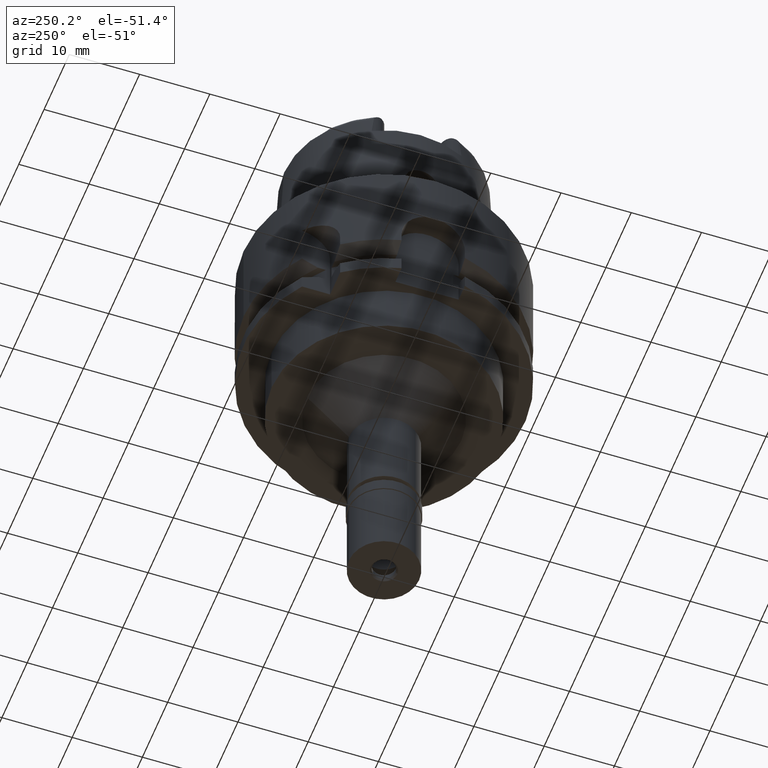
[diagram: clean part render]
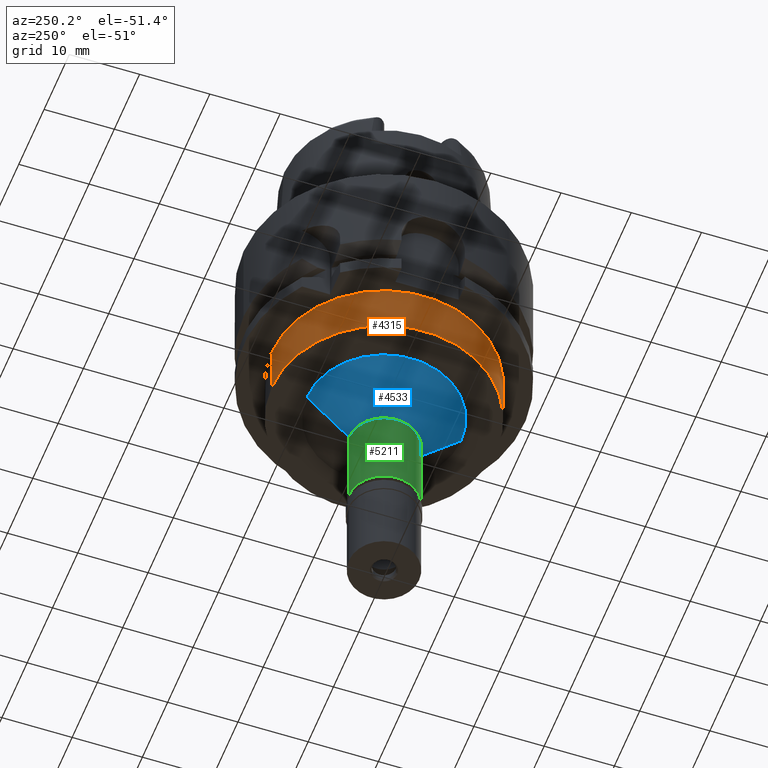
[diagram: same view with three faces highlighted in distinct colors, each labeled with its STEP entity id]
A machine part, auxiliary view with three faces highlighted in distinct colors.
Their STEP definitions:

[orange] entity #4315 — the highlighted cylindrical surface (partial cylindrical patch) has radius 16 mm, axis along (0, 0, 1).
#58 = DIRECTION ( 'NONE',  ( 0.0000000000000000000, 1.000000000000000000, 0.0000000000000000000 ) ) ;
#234 = ORIENTED_EDGE ( 'NONE', *, *, #4853, .T. ) ;
#532 = CARTESIAN_POINT ( 'NONE',  ( 0.0000000000000000000, -16.00000000000000000, -27.50000000000000000 ) ) ;
#570 = CIRCLE ( 'NONE', #1435, 16.00000000000000000 ) ;
#637 = DIRECTION ( 'NONE',  ( 0.0000000000000000000, 0.0000000000000000000, -1.000000000000000000 ) ) ;
#645 = DIRECTION ( 'NONE',  ( 0.0000000000000000000, -1.000000000000000000, 0.0000000000000000000 ) ) ;
#885 = VERTEX_POINT ( 'NONE', #2861 ) ;
#961 = DIRECTION ( 'NONE',  ( 0.0000000000000000000, 1.000000000000000000, 0.0000000000000000000 ) ) ;
#1014 = DIRECTION ( 'NONE',  ( 0.0000000000000000000, 0.0000000000000000000, -1.000000000000000000 ) ) ;
#1143 = ORIENTED_EDGE ( 'NONE', *, *, #2991, .F. ) ;
#1367 = CARTESIAN_POINT ( 'NONE',  ( 0.0000000000000000000, 16.00000000000000000, -20.00000000000000000 ) ) ;
#1435 = AXIS2_PLACEMENT_3D ( 'NONE', #5093, #4225, #961 ) ;
#1709 = EDGE_CURVE ( 'NONE', #885, #2569, #1809, .T. ) ;
#1809 = CIRCLE ( 'NONE', #3309, 16.00000000000000000 ) ;
#1814 = CARTESIAN_POINT ( 'NONE',  ( 0.0000000000000000000, -16.00000000000000000, -20.00000000000000000 ) ) ;
#2028 = AXIS2_PLACEMENT_3D ( 'NONE', #2495, #4124, #58 ) ;
#2495 = CARTESIAN_POINT ( 'NONE',  ( 0.0000000000000000000, 0.0000000000000000000, -60.11500000000000199 ) ) ;
#2517 = ORIENTED_EDGE ( 'NONE', *, *, #1709, .T. ) ;
#2519 = FACE_OUTER_BOUND ( 'NONE', #3129, .T. ) ;
#2569 = VERTEX_POINT ( 'NONE', #1367 ) ;
#2861 = CARTESIAN_POINT ( 'NONE',  ( 0.0000000000000000000, -16.00000000000000000, -20.00000000000000000 ) ) ;
#2991 = EDGE_CURVE ( 'NONE', #885, #3438, #3354, .T. ) ;
#3129 = EDGE_LOOP ( 'NONE', ( #234, #1143, #2517, #4517 ) ) ;
#3270 = VERTEX_POINT ( 'NONE', #4969 ) ;
#3309 = AXIS2_PLACEMENT_3D ( 'NONE', #4799, #3495, #645 ) ;
#3344 = LINE ( 'NONE', #4674, #3699 ) ;
#3354 = LINE ( 'NONE', #1814, #5113 ) ;
#3438 = VERTEX_POINT ( 'NONE', #532 ) ;
#3495 = DIRECTION ( 'NONE',  ( 0.0000000000000000000, 0.0000000000000000000, -1.000000000000000000 ) ) ;
#3672 = EDGE_CURVE ( 'NONE', #2569, #3270, #3344, .T. ) ;
#3699 = VECTOR ( 'NONE', #1014, 1000.000000000000000 ) ;
#4124 = DIRECTION ( 'NONE',  ( 0.0000000000000000000, 0.0000000000000000000, 1.000000000000000000 ) ) ;
#4151 = CYLINDRICAL_SURFACE ( 'NONE', #2028, 16.00000000000000000 ) ;
#4225 = DIRECTION ( 'NONE',  ( 0.0000000000000000000, 0.0000000000000000000, 1.000000000000000000 ) ) ;
#4315 = ADVANCED_FACE ( 'NONE', ( #2519 ), #4151, .T. ) ;
#4517 = ORIENTED_EDGE ( 'NONE', *, *, #3672, .T. ) ;
#4674 = CARTESIAN_POINT ( 'NONE',  ( 0.0000000000000000000, 16.00000000000000000, -20.00000000000000000 ) ) ;
#4799 = CARTESIAN_POINT ( 'NONE',  ( 0.0000000000000000000, 0.0000000000000000000, -20.00000000000000000 ) ) ;
#4853 = EDGE_CURVE ( 'NONE', #3270, #3438, #570, .T. ) ;
#4969 = CARTESIAN_POINT ( 'NONE',  ( 0.0000000000000000000, 16.00000000000000000, -27.50000000000000000 ) ) ;
#5093 = CARTESIAN_POINT ( 'NONE',  ( 0.0000000000000000000, 0.0000000000000000000, -27.50000000000000000 ) ) ;
#5113 = VECTOR ( 'NONE', #637, 1000.000000000000000 ) ;

[blue] entity #4533 — the highlighted conical surface has half-angle 45 deg.
#109 = ORIENTED_EDGE ( 'NONE', *, *, #748, .F. ) ;
#254 = VERTEX_POINT ( 'NONE', #3761 ) ;
#477 = CIRCLE ( 'NONE', #995, 5.000000000000000000 ) ;
#478 = VERTEX_POINT ( 'NONE', #2290 ) ;
#516 = VERTEX_POINT ( 'NONE', #3040 ) ;
#545 = DIRECTION ( 'NONE',  ( 0.0000000000000000000, 0.7071067811865474617, -0.7071067811865474617 ) ) ;
#580 = CIRCLE ( 'NONE', #2549, 11.00000000000000000 ) ;
#724 = EDGE_CURVE ( 'NONE', #478, #516, #580, .T. ) ;
#745 = DIRECTION ( 'NONE',  ( 0.0000000000000000000, 0.0000000000000000000, -1.000000000000000000 ) ) ;
#748 = EDGE_CURVE ( 'NONE', #478, #3190, #4497, .T. ) ;
#752 = EDGE_LOOP ( 'NONE', ( #1059, #109, #2618, #4890 ) ) ;
#995 = AXIS2_PLACEMENT_3D ( 'NONE', #1526, #745, #5210 ) ;
#1059 = ORIENTED_EDGE ( 'NONE', *, *, #4471, .F. ) ;
#1526 = CARTESIAN_POINT ( 'NONE',  ( 0.0000000000000000000, 0.0000000000000000000, -33.50000000000000000 ) ) ;
#1716 = CARTESIAN_POINT ( 'NONE',  ( 0.0000000000000000000, -5.000000000000000000, -33.50000000000000000 ) ) ;
#2090 = DIRECTION ( 'NONE',  ( 0.0000000000000000000, 0.0000000000000000000, 1.000000000000000000 ) ) ;
#2290 = CARTESIAN_POINT ( 'NONE',  ( 0.0000000000000000000, -11.00000000000000000, -27.50000000000000000 ) ) ;
#2549 = AXIS2_PLACEMENT_3D ( 'NONE', #4187, #2578, #4925 ) ;
#2578 = DIRECTION ( 'NONE',  ( 0.0000000000000000000, 0.0000000000000000000, -1.000000000000000000 ) ) ;
#2618 = ORIENTED_EDGE ( 'NONE', *, *, #724, .T. ) ;
#2771 = DIRECTION ( 'NONE',  ( 0.0000000000000000000, -0.7071067811865474617, -0.7071067811865474617 ) ) ;
#2821 = CARTESIAN_POINT ( 'NONE',  ( 0.0000000000000000000, 0.0000000000000000000, -30.50000000000000000 ) ) ;
#2841 = FACE_OUTER_BOUND ( 'NONE', #752, .T. ) ;
#2962 = CARTESIAN_POINT ( 'NONE',  ( 0.0000000000000000000, -11.00000000000000000, -27.50000000000000000 ) ) ;
#3040 = CARTESIAN_POINT ( 'NONE',  ( 0.0000000000000000000, 11.00000000000000000, -27.50000000000000000 ) ) ;
#3046 = VECTOR ( 'NONE', #545, 1000.000000000000114 ) ;
#3176 = EDGE_CURVE ( 'NONE', #516, #254, #3978, .T. ) ;
#3190 = VERTEX_POINT ( 'NONE', #1716 ) ;
#3195 = CONICAL_SURFACE ( 'NONE', #4579, 8.000000000000000000, 0.7853981633972997312 ) ;
#3570 = CARTESIAN_POINT ( 'NONE',  ( 0.0000000000000000000, 11.00000000000000000, -27.50000000000000000 ) ) ;
#3717 = DIRECTION ( 'NONE',  ( 0.0000000000000000000, 1.000000000000000000, 0.0000000000000000000 ) ) ;
#3761 = CARTESIAN_POINT ( 'NONE',  ( 0.0000000000000000000, 5.000000000000000000, -33.50000000000000000 ) ) ;
#3978 = LINE ( 'NONE', #3570, #4270 ) ;
#4187 = CARTESIAN_POINT ( 'NONE',  ( 0.0000000000000000000, 0.0000000000000000000, -27.50000000000000000 ) ) ;
#4270 = VECTOR ( 'NONE', #2771, 1000.000000000000114 ) ;
#4471 = EDGE_CURVE ( 'NONE', #3190, #254, #477, .T. ) ;
#4497 = LINE ( 'NONE', #2962, #3046 ) ;
#4533 = ADVANCED_FACE ( 'NONE', ( #2841 ), #3195, .T. ) ;
#4579 = AXIS2_PLACEMENT_3D ( 'NONE', #2821, #2090, #3717 ) ;
#4890 = ORIENTED_EDGE ( 'NONE', *, *, #3176, .T. ) ;
#4925 = DIRECTION ( 'NONE',  ( 0.0000000000000000000, -1.000000000000000000, 0.0000000000000000000 ) ) ;
#5210 = DIRECTION ( 'NONE',  ( 0.0000000000000000000, -1.000000000000000000, 0.0000000000000000000 ) ) ;

[green] entity #5211 — the highlighted cylindrical surface (partial cylindrical patch) has radius 5 mm, axis along (0, 0, 1).
#189 = DIRECTION ( 'NONE',  ( 0.0000000000000000000, 0.0000000000000000000, 1.000000000000000000 ) ) ;
#254 = VERTEX_POINT ( 'NONE', #3761 ) ;
#426 = AXIS2_PLACEMENT_3D ( 'NONE', #4994, #189, #940 ) ;
#477 = CIRCLE ( 'NONE', #995, 5.000000000000000000 ) ;
#524 = DIRECTION ( 'NONE',  ( 0.0000000000000000000, 1.000000000000000000, 0.0000000000000000000 ) ) ;
#745 = DIRECTION ( 'NONE',  ( 0.0000000000000000000, 0.0000000000000000000, -1.000000000000000000 ) ) ;
#927 = DIRECTION ( 'NONE',  ( 0.0000000000000000000, 0.0000000000000000000, 1.000000000000000000 ) ) ;
#940 = DIRECTION ( 'NONE',  ( 0.0000000000000000000, 1.000000000000000000, 0.0000000000000000000 ) ) ;
#979 = CYLINDRICAL_SURFACE ( 'NONE', #1597, 5.000000000000000000 ) ;
#995 = AXIS2_PLACEMENT_3D ( 'NONE', #1526, #745, #5210 ) ;
#1122 = VECTOR ( 'NONE', #2523, 1000.000000000000000 ) ;
#1220 = ORIENTED_EDGE ( 'NONE', *, *, #3410, .T. ) ;
#1334 = CARTESIAN_POINT ( 'NONE',  ( 0.0000000000000000000, 0.0000000000000000000, -60.11500000000000199 ) ) ;
#1474 = DIRECTION ( 'NONE',  ( 0.0000000000000000000, 0.0000000000000000000, -1.000000000000000000 ) ) ;
#1526 = CARTESIAN_POINT ( 'NONE',  ( 0.0000000000000000000, 0.0000000000000000000, -33.50000000000000000 ) ) ;
#1552 = EDGE_CURVE ( 'NONE', #3190, #2514, #1819, .T. ) ;
#1597 = AXIS2_PLACEMENT_3D ( 'NONE', #1334, #927, #524 ) ;
#1716 = CARTESIAN_POINT ( 'NONE',  ( 0.0000000000000000000, -5.000000000000000000, -33.50000000000000000 ) ) ;
#1805 = CARTESIAN_POINT ( 'NONE',  ( 0.0000000000000000000, 5.000000000000000000, -33.50000000000000000 ) ) ;
#1807 = VECTOR ( 'NONE', #1474, 1000.000000000000000 ) ;
#1819 = LINE ( 'NONE', #3360, #1122 ) ;
#2073 = ORIENTED_EDGE ( 'NONE', *, *, #2092, .T. ) ;
#2092 = EDGE_CURVE ( 'NONE', #254, #4870, #4307, .T. ) ;
#2514 = VERTEX_POINT ( 'NONE', #4283 ) ;
#2523 = DIRECTION ( 'NONE',  ( 0.0000000000000000000, 0.0000000000000000000, -1.000000000000000000 ) ) ;
#2563 = CARTESIAN_POINT ( 'NONE',  ( 0.0000000000000000000, 5.000000000000000000, -46.00000000000000000 ) ) ;
#3190 = VERTEX_POINT ( 'NONE', #1716 ) ;
#3298 = ORIENTED_EDGE ( 'NONE', *, *, #4471, .T. ) ;
#3360 = CARTESIAN_POINT ( 'NONE',  ( 0.0000000000000000000, -5.000000000000000000, -33.50000000000000000 ) ) ;
#3410 = EDGE_CURVE ( 'NONE', #4870, #2514, #3916, .T. ) ;
#3571 = ORIENTED_EDGE ( 'NONE', *, *, #1552, .F. ) ;
#3647 = EDGE_LOOP ( 'NONE', ( #1220, #3571, #3298, #2073 ) ) ;
#3745 = FACE_OUTER_BOUND ( 'NONE', #3647, .T. ) ;
#3761 = CARTESIAN_POINT ( 'NONE',  ( 0.0000000000000000000, 5.000000000000000000, -33.50000000000000000 ) ) ;
#3916 = CIRCLE ( 'NONE', #426, 5.000000000000000000 ) ;
#4283 = CARTESIAN_POINT ( 'NONE',  ( 0.0000000000000000000, -5.000000000000000000, -46.00000000000000000 ) ) ;
#4307 = LINE ( 'NONE', #1805, #1807 ) ;
#4471 = EDGE_CURVE ( 'NONE', #3190, #254, #477, .T. ) ;
#4870 = VERTEX_POINT ( 'NONE', #2563 ) ;
#4994 = CARTESIAN_POINT ( 'NONE',  ( 0.0000000000000000000, 0.0000000000000000000, -46.00000000000000000 ) ) ;
#5210 = DIRECTION ( 'NONE',  ( 0.0000000000000000000, -1.000000000000000000, 0.0000000000000000000 ) ) ;
#5211 = ADVANCED_FACE ( 'NONE', ( #3745 ), #979, .T. ) ;